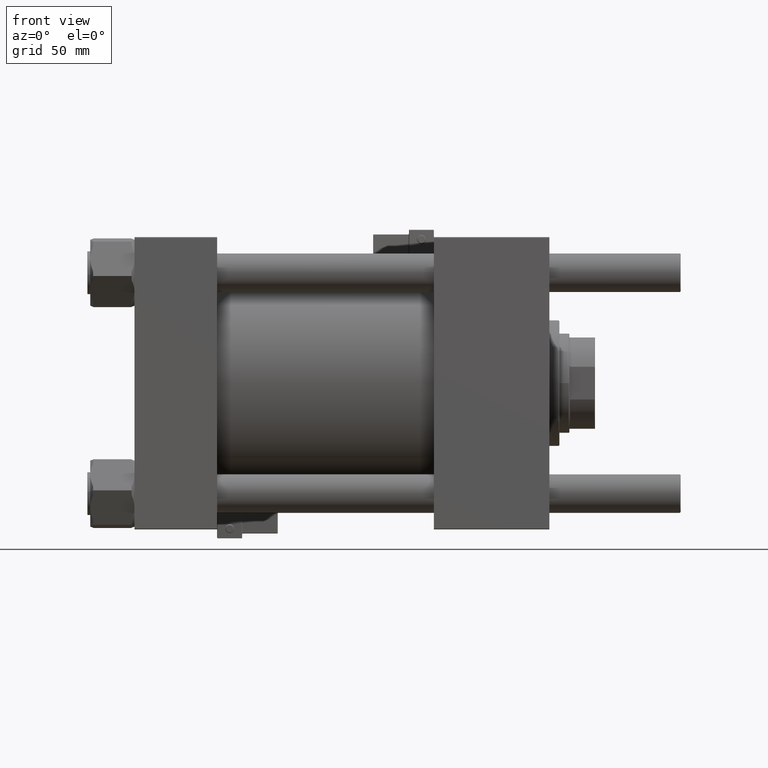
[diagram: clean part render]
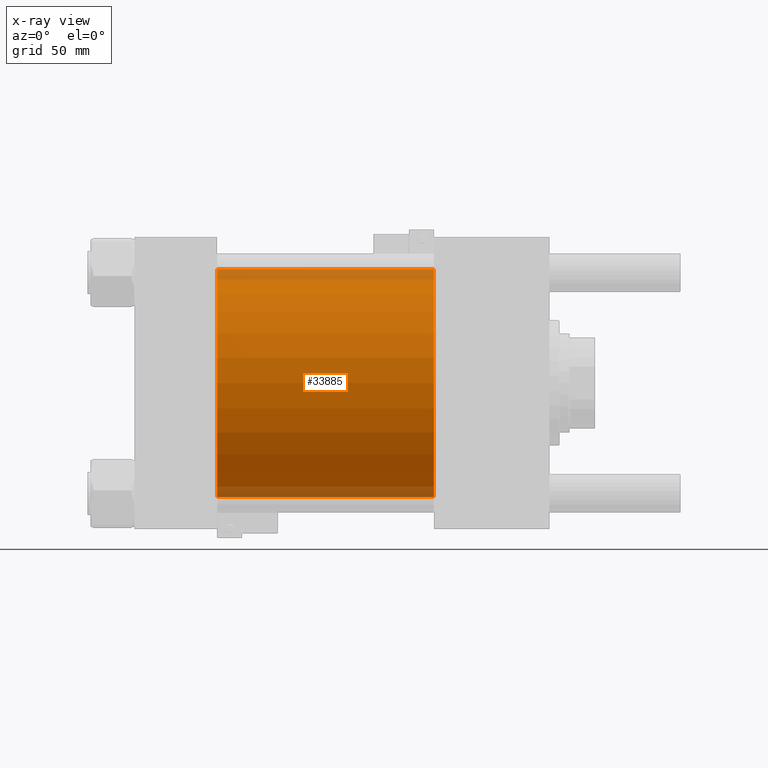
[diagram: x-ray — body ghosted, one internal face saturated and labeled with its STEP entity id]
A machine part, front view, then the same camera in x-ray: the body is ghosted and one INTERNAL B-rep face — a face not visible from any outside direction — is saturated and labeled: STEP entity #33885.
In plain terms, the highlighted cylindrical surface (partial cylindrical patch) has radius 80 mm, axis along (-1, -0, -0).
Its self-contained STEP definition (entity closure, byte-faithful):
#3169 = LINE ( 'NONE', #17023, #39476 ) ;
#5255 = LINE ( 'NONE', #28743, #46375 ) ;
#5282 = CARTESIAN_POINT ( 'NONE',  ( 210.0000000000000000, -2.602085213965210642E-15, 0.000000000000000000 ) ) ;
#8892 = EDGE_CURVE ( 'NONE', #17192, #37847, #44179, .T. ) ;
#11545 = ORIENTED_EDGE ( 'NONE', *, *, #8892, .F. ) ;
#12511 = DIRECTION ( 'NONE',  ( -1.000000000000000000, -0.000000000000000000, -0.000000000000000000 ) ) ;
#13051 = ORIENTED_EDGE ( 'NONE', *, *, #20902, .T. ) ;
#17019 = CARTESIAN_POINT ( 'NONE',  ( 58.00000000000000000, 7.195089179213615410E-15, -80.00000000000000000 ) ) ;
#17023 = CARTESIAN_POINT ( 'NONE',  ( 210.0000000000000000, -2.602085213965210642E-15, 80.00000000000000000 ) ) ;
#17192 = VERTEX_POINT ( 'NONE', #23528 ) ;
#18196 = AXIS2_PLACEMENT_3D ( 'NONE', #54938, #37668, #56048 ) ;
#20902 = EDGE_CURVE ( 'NONE', #52258, #37847, #5255, .T. ) ;
#23528 = CARTESIAN_POINT ( 'NONE',  ( 58.00000000000000000, -2.602085213965210642E-15, 80.00000000000000000 ) ) ;
#26510 = CARTESIAN_POINT ( 'NONE',  ( 210.0000000000000000, -2.602085213965210642E-15, 80.00000000000000000 ) ) ;
#26984 = DIRECTION ( 'NONE',  ( 0.000000000000000000, 0.000000000000000000, -1.000000000000000000 ) ) ;
#28743 = CARTESIAN_POINT ( 'NONE',  ( 210.0000000000000000, 7.195089179213615410E-15, -80.00000000000000000 ) ) ;
#29303 = DIRECTION ( 'NONE',  ( -1.000000000000000000, -0.000000000000000000, -0.000000000000000000 ) ) ;
#33885 = ADVANCED_FACE ( 'NONE', ( #42290 ), #42593, .F. ) ;
#34277 = VERTEX_POINT ( 'NONE', #26510 ) ;
#36850 = EDGE_CURVE ( 'NONE', #34277, #52258, #56425, .T. ) ;
#37145 = AXIS2_PLACEMENT_3D ( 'NONE', #5282, #41754, #26984 ) ;
#37157 = ORIENTED_EDGE ( 'NONE', *, *, #36850, .T. ) ;
#37395 = ORIENTED_EDGE ( 'NONE', *, *, #53558, .F. ) ;
#37457 = CARTESIAN_POINT ( 'NONE',  ( 210.0000000000000000, -2.602085213965210642E-15, 0.000000000000000000 ) ) ;
#37668 = DIRECTION ( 'NONE',  ( 1.000000000000000000, 0.000000000000000000, 0.000000000000000000 ) ) ;
#37847 = VERTEX_POINT ( 'NONE', #17019 ) ;
#39476 = VECTOR ( 'NONE', #12511, 1000.000000000000000 ) ;
#39868 = EDGE_LOOP ( 'NONE', ( #37157, #13051, #11545, #37395 ) ) ;
#41511 = CARTESIAN_POINT ( 'NONE',  ( 210.0000000000000000, 7.195089179213615410E-15, -80.00000000000000000 ) ) ;
#41754 = DIRECTION ( 'NONE',  ( 1.000000000000000000, 0.000000000000000000, 0.000000000000000000 ) ) ;
#42290 = FACE_OUTER_BOUND ( 'NONE', #39868, .T. ) ;
#42593 = CYLINDRICAL_SURFACE ( 'NONE', #43831, 80.00000000000000000 ) ;
#43831 = AXIS2_PLACEMENT_3D ( 'NONE', #37457, #29303, #56443 ) ;
#44179 = CIRCLE ( 'NONE', #18196, 80.00000000000000000 ) ;
#46375 = VECTOR ( 'NONE', #46858, 1000.000000000000000 ) ;
#46858 = DIRECTION ( 'NONE',  ( -1.000000000000000000, -0.000000000000000000, -0.000000000000000000 ) ) ;
#52258 = VERTEX_POINT ( 'NONE', #41511 ) ;
#53558 = EDGE_CURVE ( 'NONE', #34277, #17192, #3169, .T. ) ;
#54938 = CARTESIAN_POINT ( 'NONE',  ( 58.00000000000000000, -2.602085213965210642E-15, 0.000000000000000000 ) ) ;
#56048 = DIRECTION ( 'NONE',  ( 0.000000000000000000, 0.000000000000000000, -1.000000000000000000 ) ) ;
#56425 = CIRCLE ( 'NONE', #37145, 80.00000000000000000 ) ;
#56443 = DIRECTION ( 'NONE',  ( 0.000000000000000000, 0.000000000000000000, 1.000000000000000000 ) ) ;